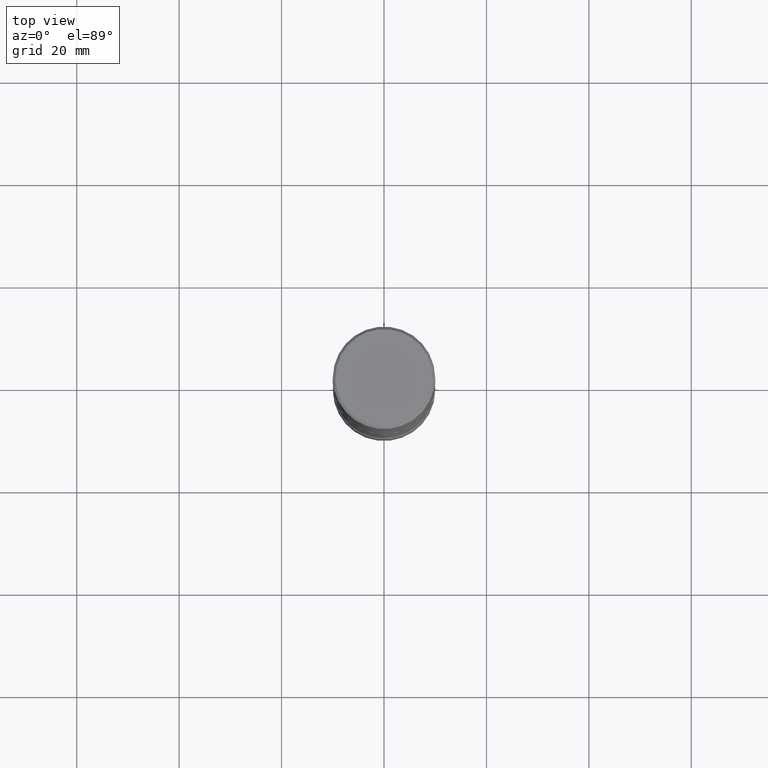
[diagram: clean part render]
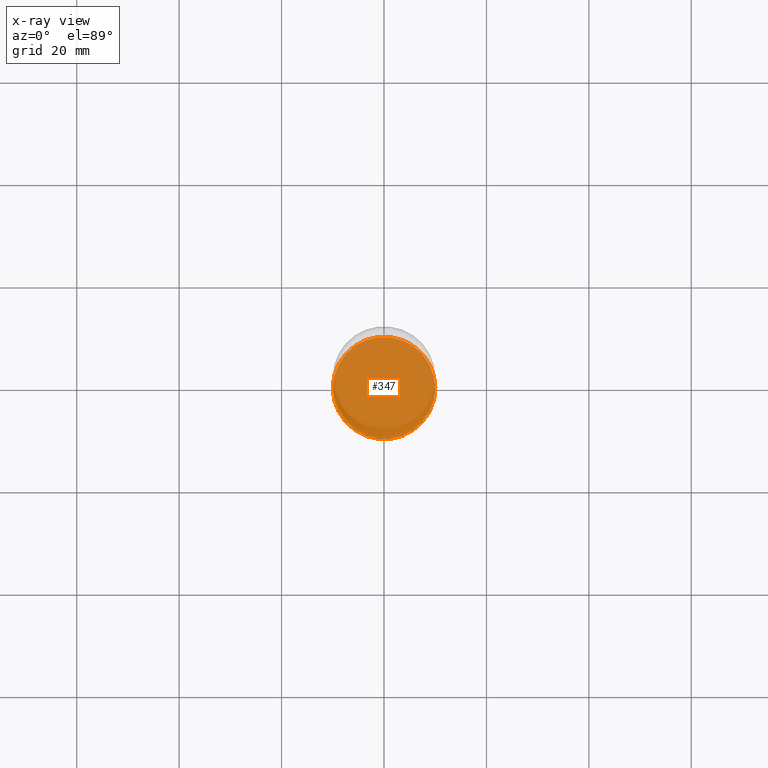
[diagram: x-ray — body ghosted, one internal face saturated and labeled with its STEP entity id]
A machine part, top view, then the same camera in x-ray: the body is ghosted and one INTERNAL B-rep face — a face not visible from any outside direction — is saturated and labeled: STEP entity #347.
In plain terms, the highlighted planar face has unit normal (0, -0, -1).
Its self-contained STEP definition (entity closure, byte-faithful):
#11 = DIRECTION ( 'NONE',  ( -2.445468806185136597E-29, 3.491481338843145583E-15, 1.000000000000000000 ) ) ;
#30 = EDGE_CURVE ( 'NONE', #297, #499, #112, .T. ) ;
#48 = CARTESIAN_POINT ( 'NONE',  ( 1.116821149096690103E-28, -1.594524612636276117E-14, -4.566900000000000404 ) ) ;
#112 = CIRCLE ( 'NONE', #156, 0.3937000000000004385 ) ;
#125 = CARTESIAN_POINT ( 'NONE',  ( 1.116821149096690103E-28, -1.594524612636276117E-14, -4.566900000000000404 ) ) ;
#127 = DIRECTION ( 'NONE',  ( 2.438088387897960049E-29, -3.491481338843145188E-15, -1.000000000000000000 ) ) ;
#156 = AXIS2_PLACEMENT_3D ( 'NONE', #48, #463, #292 ) ;
#168 = FACE_OUTER_BOUND ( 'NONE', #369, .T. ) ;
#219 = DIRECTION ( 'NONE',  ( -1.000000000000000000, 6.982962677686265922E-15, -4.876176775795935793E-29 ) ) ;
#225 = DIRECTION ( 'NONE',  ( 1.000000000000000000, -6.982962677686270655E-15, 0.000000000000000000 ) ) ;
#285 = ORIENTED_EDGE ( 'NONE', *, *, #552, .T. ) ;
#292 = DIRECTION ( 'NONE',  ( 1.000000000000000000, -6.982962677686270655E-15, 0.000000000000000000 ) ) ;
#297 = VERTEX_POINT ( 'NONE', #319 ) ;
#299 = CIRCLE ( 'NONE', #398, 0.3937000000000004385 ) ;
#300 = AXIS2_PLACEMENT_3D ( 'NONE', #125, #127, #219 ) ;
#319 = CARTESIAN_POINT ( 'NONE',  ( 0.3937000000000004385, -1.869443853256785070E-14, -4.566900000000000404 ) ) ;
#347 = ADVANCED_FACE ( 'NONE', ( #168 ), #507, .F. ) ;
#369 = EDGE_LOOP ( 'NONE', ( #459, #285 ) ) ;
#393 = CARTESIAN_POINT ( 'NONE',  ( -0.3937000000000004385, -1.445365339640257918E-14, -4.566900000000000404 ) ) ;
#398 = AXIS2_PLACEMENT_3D ( 'NONE', #533, #11, #225 ) ;
#459 = ORIENTED_EDGE ( 'NONE', *, *, #30, .T. ) ;
#463 = DIRECTION ( 'NONE',  ( -2.445468806185136597E-29, 3.491481338843145583E-15, 1.000000000000000000 ) ) ;
#499 = VERTEX_POINT ( 'NONE', #393 ) ;
#507 = PLANE ( 'NONE',  #300 ) ;
#533 = CARTESIAN_POINT ( 'NONE',  ( 1.116821149096690103E-28, -1.594524612636276117E-14, -4.566900000000000404 ) ) ;
#552 = EDGE_CURVE ( 'NONE', #499, #297, #299, .T. ) ;